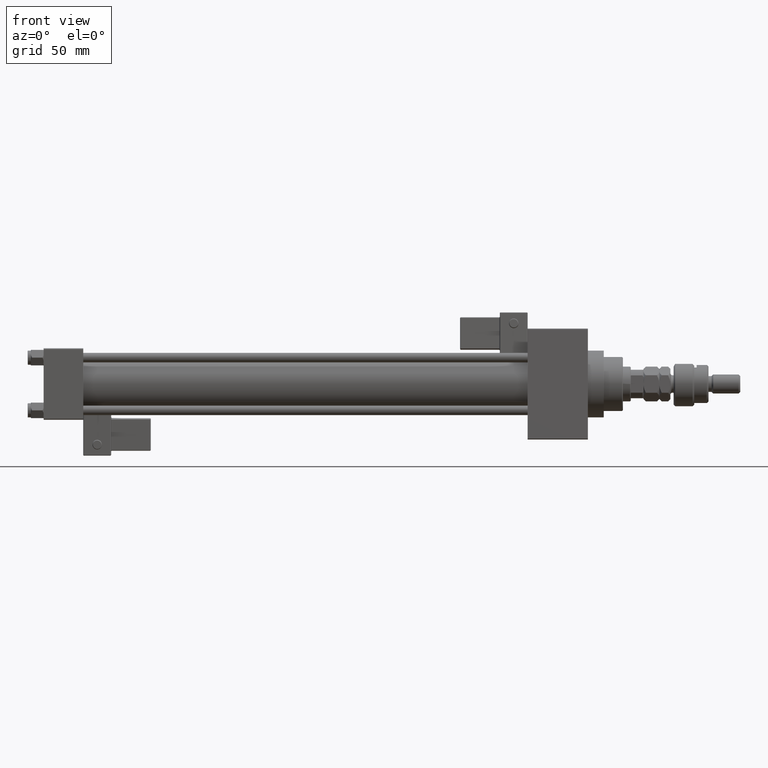
[diagram: clean part render]
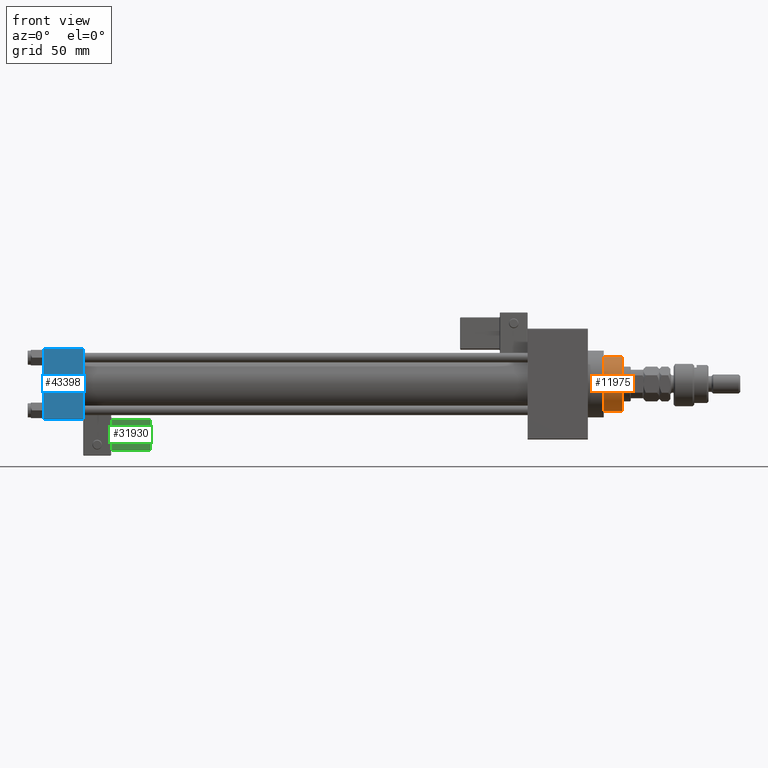
[diagram: same view with three faces highlighted in distinct colors, each labeled with its STEP entity id]
A machine part, front view with three faces highlighted in distinct colors.
Their STEP definitions:

[orange] entity #11975 — the highlighted cylindrical surface (edge-blend (fillet) strip) has radius 17 mm, axis along (-1, 0, 0).
#2968 = CYLINDRICAL_SURFACE ( 'NONE', #25366, 17.00000000000000000 ) ;
#4789 = EDGE_CURVE ( 'NONE', #53921, #30418, #33196, .T. ) ;
#5083 = ORIENTED_EDGE ( 'NONE', *, *, #26610, .T. ) ;
#5771 = AXIS2_PLACEMENT_3D ( 'NONE', #43759, #22936, #14716 ) ;
#6952 = CARTESIAN_POINT ( 'NONE',  ( -17.00000000000000000, 0.000000000000000000, 43.25999999999999801 ) ) ;
#8488 = LINE ( 'NONE', #25458, #44364 ) ;
#11286 = ORIENTED_EDGE ( 'NONE', *, *, #4789, .F. ) ;
#11296 = ORIENTED_EDGE ( 'NONE', *, *, #27921, .T. ) ;
#11975 = ADVANCED_FACE ( 'NONE', ( #19671 ), #2968, .T. ) ;
#12053 = DIRECTION ( 'NONE',  ( -0.000000000000000000, -0.000000000000000000, -1.000000000000000000 ) ) ;
#14716 = DIRECTION ( 'NONE',  ( 1.000000000000000000, 0.000000000000000000, 0.000000000000000000 ) ) ;
#15565 = CARTESIAN_POINT ( 'NONE',  ( 0.000000000000000000, 0.000000000000000000, 55.26000000000000512 ) ) ;
#19039 = DIRECTION ( 'NONE',  ( 1.000000000000000000, 0.000000000000000000, 0.000000000000000000 ) ) ;
#19049 = VECTOR ( 'NONE', #41153, 1000.000000000000000 ) ;
#19671 = FACE_OUTER_BOUND ( 'NONE', #24811, .T. ) ;
#22330 = CARTESIAN_POINT ( 'NONE',  ( 0.000000000000000000, 0.000000000000000000, 43.25999999999999801 ) ) ;
#22920 = VERTEX_POINT ( 'NONE', #35407 ) ;
#22936 = DIRECTION ( 'NONE',  ( 0.000000000000000000, 0.000000000000000000, -1.000000000000000000 ) ) ;
#24689 = CARTESIAN_POINT ( 'NONE',  ( -17.00000000000000000, 0.000000000000000000, 55.26000000000000512 ) ) ;
#24714 = CARTESIAN_POINT ( 'NONE',  ( -17.00000000000000000, 0.000000000000000000, 54.76000000000001222 ) ) ;
#24811 = EDGE_LOOP ( 'NONE', ( #5083, #43699, #11296, #11286 ) ) ;
#25366 = AXIS2_PLACEMENT_3D ( 'NONE', #15565, #32268, #49249 ) ;
#25458 = CARTESIAN_POINT ( 'NONE',  ( 17.00000000000000000, 2.081899558550500280E-15, 55.26000000000000512 ) ) ;
#26610 = EDGE_CURVE ( 'NONE', #53921, #30414, #33759, .T. ) ;
#27921 = EDGE_CURVE ( 'NONE', #22920, #30418, #47833, .T. ) ;
#30414 = VERTEX_POINT ( 'NONE', #44998 ) ;
#30418 = VERTEX_POINT ( 'NONE', #6952 ) ;
#31370 = DIRECTION ( 'NONE',  ( 0.000000000000000000, 0.000000000000000000, 1.000000000000000000 ) ) ;
#32268 = DIRECTION ( 'NONE',  ( -0.000000000000000000, -0.000000000000000000, -1.000000000000000000 ) ) ;
#33196 = LINE ( 'NONE', #24689, #19049 ) ;
#33759 = CIRCLE ( 'NONE', #5771, 17.00000000000000000 ) ;
#35407 = CARTESIAN_POINT ( 'NONE',  ( 17.00000000000000000, 2.081899558550500280E-15, 43.25999999999999801 ) ) ;
#41153 = DIRECTION ( 'NONE',  ( -0.000000000000000000, -0.000000000000000000, -1.000000000000000000 ) ) ;
#43699 = ORIENTED_EDGE ( 'NONE', *, *, #52427, .T. ) ;
#43759 = CARTESIAN_POINT ( 'NONE',  ( 0.000000000000000000, 0.000000000000000000, 54.76000000000001222 ) ) ;
#44364 = VECTOR ( 'NONE', #12053, 1000.000000000000000 ) ;
#44998 = CARTESIAN_POINT ( 'NONE',  ( 17.00000000000000000, 2.081899558550500280E-15, 54.76000000000001222 ) ) ;
#47833 = CIRCLE ( 'NONE', #52227, 17.00000000000000000 ) ;
#49249 = DIRECTION ( 'NONE',  ( -1.000000000000000000, 0.000000000000000000, 0.000000000000000000 ) ) ;
#52227 = AXIS2_PLACEMENT_3D ( 'NONE', #22330, #31370, #19039 ) ;
#52427 = EDGE_CURVE ( 'NONE', #30414, #22920, #8488, .T. ) ;
#53921 = VERTEX_POINT ( 'NONE', #24714 ) ;

[blue] entity #43398 — the highlighted planar face has unit normal (0, 1, 0).
#970 = EDGE_LOOP ( 'NONE', ( #31843, #25286, #20247, #27185 ) ) ;
#5035 = CARTESIAN_POINT ( 'NONE',  ( 25.00000000000000000, -22.50000000000000000, -21.99999999999997158 ) ) ;
#6584 = VERTEX_POINT ( 'NONE', #5035 ) ;
#6763 = LINE ( 'NONE', #14972, #35867 ) ;
#7056 = EDGE_CURVE ( 'NONE', #24291, #6584, #34277, .T. ) ;
#8699 = DIRECTION ( 'NONE',  ( -1.000000000000000000, 0.000000000000000000, 0.000000000000000000 ) ) ;
#8954 = EDGE_CURVE ( 'NONE', #24291, #38845, #33613, .T. ) ;
#12948 = FACE_OUTER_BOUND ( 'NONE', #970, .T. ) ;
#13468 = DIRECTION ( 'NONE',  ( 0.000000000000000000, 0.000000000000000000, -1.000000000000000000 ) ) ;
#13736 = CARTESIAN_POINT ( 'NONE',  ( 25.00000000000000000, -22.50000000000000000, 22.50000000000000000 ) ) ;
#14972 = CARTESIAN_POINT ( 'NONE',  ( 25.00000000000000000, -22.50000000000000000, -21.99999999999998579 ) ) ;
#15271 = AXIS2_PLACEMENT_3D ( 'NONE', #50469, #21416, #38661 ) ;
#18772 = CARTESIAN_POINT ( 'NONE',  ( 0.000000000000000000, -22.50000000000000000, 22.50000000000000000 ) ) ;
#20247 = ORIENTED_EDGE ( 'NONE', *, *, #7056, .F. ) ;
#21416 = DIRECTION ( 'NONE',  ( -0.000000000000000000, 1.000000000000000000, 0.000000000000000000 ) ) ;
#24291 = VERTEX_POINT ( 'NONE', #51185 ) ;
#25284 = VERTEX_POINT ( 'NONE', #32344 ) ;
#25286 = ORIENTED_EDGE ( 'NONE', *, *, #37097, .T. ) ;
#27185 = ORIENTED_EDGE ( 'NONE', *, *, #8954, .T. ) ;
#28378 = EDGE_CURVE ( 'NONE', #38845, #25284, #39863, .T. ) ;
#29643 = PLANE ( 'NONE',  #15271 ) ;
#31154 = CARTESIAN_POINT ( 'NONE',  ( 0.000000000000000000, -22.50000000000000000, 22.00000000000000000 ) ) ;
#31843 = ORIENTED_EDGE ( 'NONE', *, *, #28378, .T. ) ;
#32344 = CARTESIAN_POINT ( 'NONE',  ( 0.000000000000000000, -22.50000000000000000, -21.99999999999997158 ) ) ;
#33613 = LINE ( 'NONE', #46223, #37620 ) ;
#34277 = LINE ( 'NONE', #13736, #50684 ) ;
#35867 = VECTOR ( 'NONE', #51966, 1000.000000000000000 ) ;
#37097 = EDGE_CURVE ( 'NONE', #25284, #6584, #6763, .T. ) ;
#37620 = VECTOR ( 'NONE', #8699, 1000.000000000000000 ) ;
#38661 = DIRECTION ( 'NONE',  ( 0.000000000000000000, -0.000000000000000000, 1.000000000000000000 ) ) ;
#38845 = VERTEX_POINT ( 'NONE', #31154 ) ;
#39863 = LINE ( 'NONE', #18772, #46974 ) ;
#43398 = ADVANCED_FACE ( 'NONE', ( #12948 ), #29643, .F. ) ;
#43710 = DIRECTION ( 'NONE',  ( 0.000000000000000000, 0.000000000000000000, -1.000000000000000000 ) ) ;
#46223 = CARTESIAN_POINT ( 'NONE',  ( 25.00000000000000000, -22.50000000000000000, 22.00000000000000000 ) ) ;
#46974 = VECTOR ( 'NONE', #43710, 1000.000000000000000 ) ;
#50469 = CARTESIAN_POINT ( 'NONE',  ( 25.00000000000000000, -22.50000000000000000, 22.50000000000000000 ) ) ;
#50684 = VECTOR ( 'NONE', #13468, 1000.000000000000000 ) ;
#51185 = CARTESIAN_POINT ( 'NONE',  ( 25.00000000000000000, -22.50000000000000000, 22.00000000000000000 ) ) ;
#51966 = DIRECTION ( 'NONE',  ( 1.000000000000000000, 0.000000000000000000, 0.000000000000000000 ) ) ;

[green] entity #31930 — the highlighted planar face has unit normal (0, 0.9994, 0.0353).
#230 = ORIENTED_EDGE ( 'NONE', *, *, #48351, .T. ) ;
#4659 = DIRECTION ( 'NONE',  ( 1.334402673828313339E-16, 0.000000000000000000, -1.000000000000000000 ) ) ;
#4882 = CARTESIAN_POINT ( 'NONE',  ( 33.24999999999999289, -30.25000000000000000, 21.50000000000000000 ) ) ;
#8606 = LINE ( 'NONE', #25302, #17248 ) ;
#10946 = ORIENTED_EDGE ( 'NONE', *, *, #31832, .T. ) ;
#12140 = PLANE ( 'NONE',  #16509 ) ;
#13821 = CARTESIAN_POINT ( 'NONE',  ( 33.24999999999999289, -30.25000000000000000, 22.00000000000000355 ) ) ;
#16509 = AXIS2_PLACEMENT_3D ( 'NONE', #40900, #28285, #20343 ) ;
#17248 = VECTOR ( 'NONE', #50245, 1000.000000000000000 ) ;
#17926 = CARTESIAN_POINT ( 'NONE',  ( 9.250000000000005329, -30.25000000000000000, 2.500000000000003109 ) ) ;
#19012 = VECTOR ( 'NONE', #50515, 1000.000000000000000 ) ;
#20343 = DIRECTION ( 'NONE',  ( 0.000000000000000000, -0.000000000000000000, 1.000000000000000000 ) ) ;
#21201 = LINE ( 'NONE', #21735, #19012 ) ;
#21735 = CARTESIAN_POINT ( 'NONE',  ( 33.75000000000000000, -30.25000000000000000, 2.500000000000005773 ) ) ;
#22653 = VECTOR ( 'NONE', #30520, 1000.000000000000000 ) ;
#25302 = CARTESIAN_POINT ( 'NONE',  ( 33.75000000000000000, -30.25000000000000000, 21.50000000000000000 ) ) ;
#28285 = DIRECTION ( 'NONE',  ( -0.000000000000000000, 1.000000000000000000, 0.000000000000000000 ) ) ;
#28569 = EDGE_CURVE ( 'NONE', #41691, #34452, #8606, .T. ) ;
#28572 = EDGE_CURVE ( 'NONE', #32686, #37086, #21201, .T. ) ;
#29103 = FACE_OUTER_BOUND ( 'NONE', #37898, .T. ) ;
#29395 = ORIENTED_EDGE ( 'NONE', *, *, #28569, .T. ) ;
#30520 = DIRECTION ( 'NONE',  ( -1.734723475976807341E-16, -0.000000000000000000, 1.000000000000000000 ) ) ;
#31832 = EDGE_CURVE ( 'NONE', #37086, #41691, #51344, .T. ) ;
#31930 = ADVANCED_FACE ( 'NONE', ( #29103 ), #12140, .F. ) ;
#32686 = VERTEX_POINT ( 'NONE', #17926 ) ;
#33230 = CARTESIAN_POINT ( 'NONE',  ( 9.250000000000001776, -30.25000000000000000, 21.50000000000000000 ) ) ;
#34452 = VERTEX_POINT ( 'NONE', #33230 ) ;
#34577 = VECTOR ( 'NONE', #4659, 1000.000000000000000 ) ;
#35508 = CARTESIAN_POINT ( 'NONE',  ( 33.24999999999999289, -30.25000000000000000, 2.500000000000006661 ) ) ;
#37086 = VERTEX_POINT ( 'NONE', #35508 ) ;
#37898 = EDGE_LOOP ( 'NONE', ( #230, #49459, #10946, #29395 ) ) ;
#40900 = CARTESIAN_POINT ( 'NONE',  ( 33.75000000000000000, -30.25000000000000000, 22.00000000000000355 ) ) ;
#41691 = VERTEX_POINT ( 'NONE', #4882 ) ;
#42988 = CARTESIAN_POINT ( 'NONE',  ( 9.250000000000005329, -30.25000000000000000, 2.000000000000001776 ) ) ;
#48351 = EDGE_CURVE ( 'NONE', #34452, #32686, #50677, .T. ) ;
#49459 = ORIENTED_EDGE ( 'NONE', *, *, #28572, .T. ) ;
#50245 = DIRECTION ( 'NONE',  ( -1.000000000000000000, 0.000000000000000000, -1.334402673828313339E-16 ) ) ;
#50515 = DIRECTION ( 'NONE',  ( 1.000000000000000000, -0.000000000000000000, 1.334402673828313339E-16 ) ) ;
#50677 = LINE ( 'NONE', #42988, #34577 ) ;
#51344 = LINE ( 'NONE', #13821, #22653 ) ;